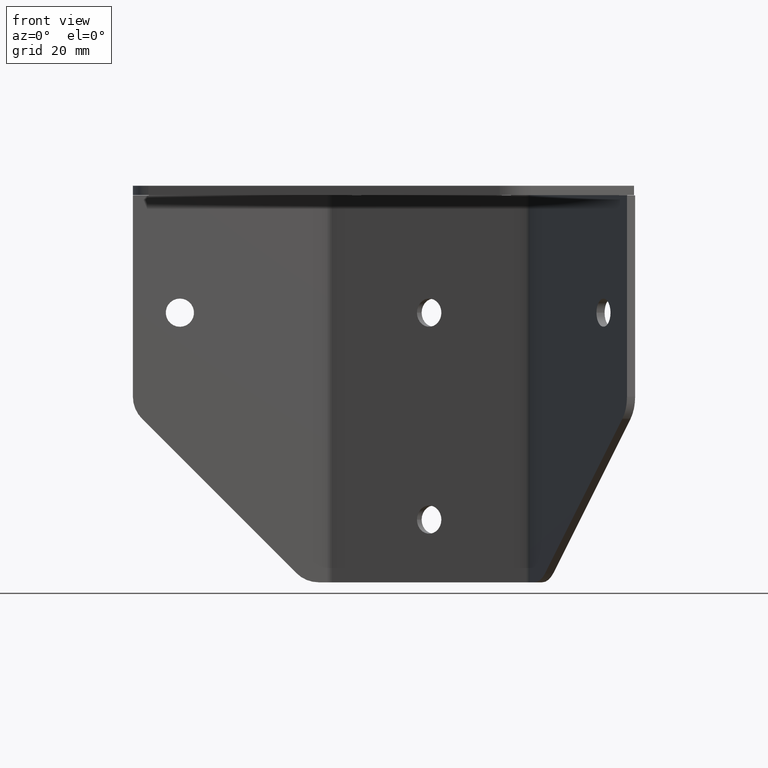
[diagram: clean part render]
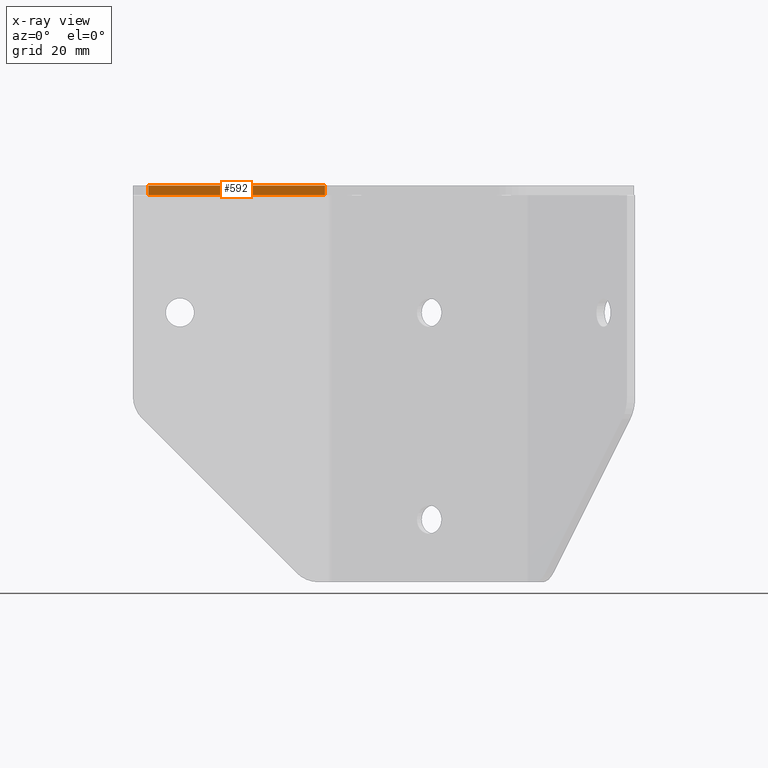
[diagram: x-ray — body ghosted, one internal face saturated and labeled with its STEP entity id]
A machine part, front view, then the same camera in x-ray: the body is ghosted and one INTERNAL B-rep face — a face not visible from any outside direction — is saturated and labeled: STEP entity #592.
In plain terms, the highlighted planar face has unit normal (0, 1, 0).
Its self-contained STEP definition (entity closure, byte-faithful):
#49 = DIRECTION ( 'NONE',  ( -1.000000000000000000, 0.000000000000000000, 0.000000000000000000 ) ) ;
#202 = LINE ( 'NONE', #2609, #887 ) ;
#315 = DIRECTION ( 'NONE',  ( -1.000000000000000000, -0.000000000000000000, 0.000000000000000000 ) ) ;
#356 = CARTESIAN_POINT ( 'NONE',  ( 586.2509217650526807, 1091.305264068951146, 1257.499999999999545 ) ) ;
#373 = PLANE ( 'NONE',  #799 ) ;
#539 = LINE ( 'NONE', #2675, #2705 ) ;
#585 = CARTESIAN_POINT ( 'NONE',  ( 530.0000000000000000, 1091.305264068951146, 1257.499999999999545 ) ) ;
#592 = ADVANCED_FACE ( 'NONE', ( #2522 ), #373, .T. ) ;
#681 = EDGE_CURVE ( 'NONE', #1615, #2232, #2953, .T. ) ;
#686 = ORIENTED_EDGE ( 'NONE', *, *, #1163, .F. ) ;
#799 = AXIS2_PLACEMENT_3D ( 'NONE', #2775, #2981, #49 ) ;
#887 = VECTOR ( 'NONE', #1460, 1000.000000000000000 ) ;
#946 = EDGE_CURVE ( 'NONE', #1168, #1615, #202, .T. ) ;
#1079 = CARTESIAN_POINT ( 'NONE',  ( 586.2509217650526807, 1091.305264068951146, 1260.499999999999545 ) ) ;
#1115 = ORIENTED_EDGE ( 'NONE', *, *, #1371, .F. ) ;
#1163 = EDGE_CURVE ( 'NONE', #1668, #2232, #2279, .T. ) ;
#1168 = VERTEX_POINT ( 'NONE', #1079 ) ;
#1174 = CARTESIAN_POINT ( 'NONE',  ( 530.0000000000000000, 1091.305264068951146, 1260.499999999999545 ) ) ;
#1225 = CARTESIAN_POINT ( 'NONE',  ( 586.2509217650526807, 1091.305264068951146, 1257.499999999999545 ) ) ;
#1227 = ORIENTED_EDGE ( 'NONE', *, *, #681, .T. ) ;
#1326 = ORIENTED_EDGE ( 'NONE', *, *, #946, .T. ) ;
#1371 = EDGE_CURVE ( 'NONE', #1168, #1668, #539, .T. ) ;
#1460 = DIRECTION ( 'NONE',  ( -0.000000000000000000, -0.000000000000000000, -1.000000000000000000 ) ) ;
#1615 = VERTEX_POINT ( 'NONE', #1225 ) ;
#1668 = VERTEX_POINT ( 'NONE', #1174 ) ;
#1734 = VECTOR ( 'NONE', #2201, 1000.000000000000000 ) ;
#1803 = EDGE_LOOP ( 'NONE', ( #686, #1115, #1326, #1227 ) ) ;
#2201 = DIRECTION ( 'NONE',  ( -1.000000000000000000, 0.000000000000000000, 0.000000000000000000 ) ) ;
#2232 = VERTEX_POINT ( 'NONE', #585 ) ;
#2279 = LINE ( 'NONE', #3035, #2806 ) ;
#2522 = FACE_OUTER_BOUND ( 'NONE', #1803, .T. ) ;
#2609 = CARTESIAN_POINT ( 'NONE',  ( 586.2509217650526807, 1091.305264068951146, 1257.499999999999545 ) ) ;
#2675 = CARTESIAN_POINT ( 'NONE',  ( 0.000000000000000000, 1091.305264068951146, 1260.499999999999545 ) ) ;
#2705 = VECTOR ( 'NONE', #315, 1000.000000000000000 ) ;
#2775 = CARTESIAN_POINT ( 'NONE',  ( 586.2509217650526807, 1091.305264068951146, 1257.499999999999545 ) ) ;
#2806 = VECTOR ( 'NONE', #2807, 1000.000000000000000 ) ;
#2807 = DIRECTION ( 'NONE',  ( -0.000000000000000000, -0.000000000000000000, -1.000000000000000000 ) ) ;
#2953 = LINE ( 'NONE', #356, #1734 ) ;
#2981 = DIRECTION ( 'NONE',  ( 0.000000000000000000, 1.000000000000000000, -0.000000000000000000 ) ) ;
#3035 = CARTESIAN_POINT ( 'NONE',  ( 530.0000000000000000, 1091.305264068951146, 1257.499999999999545 ) ) ;